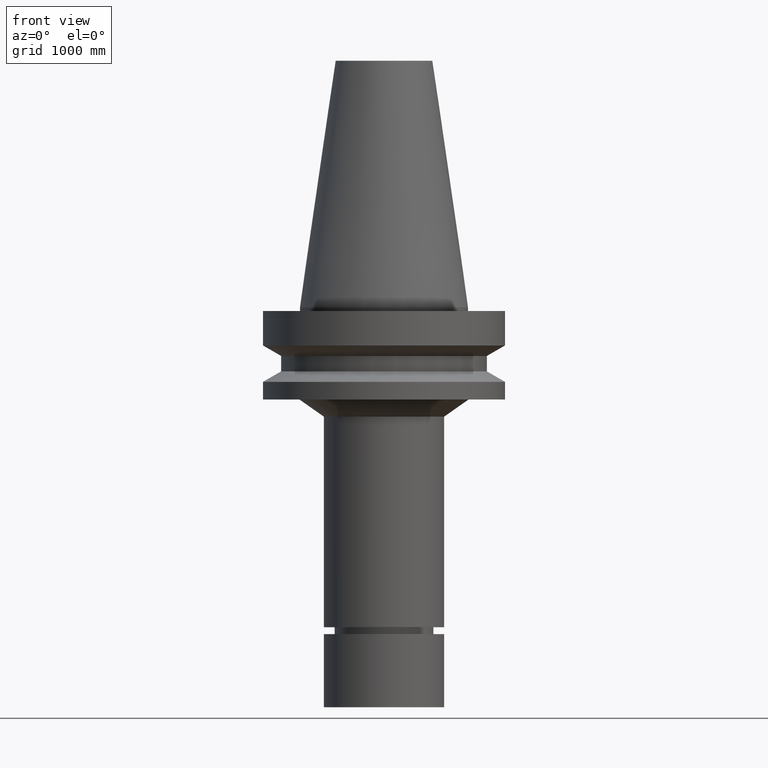
[diagram: clean part render]
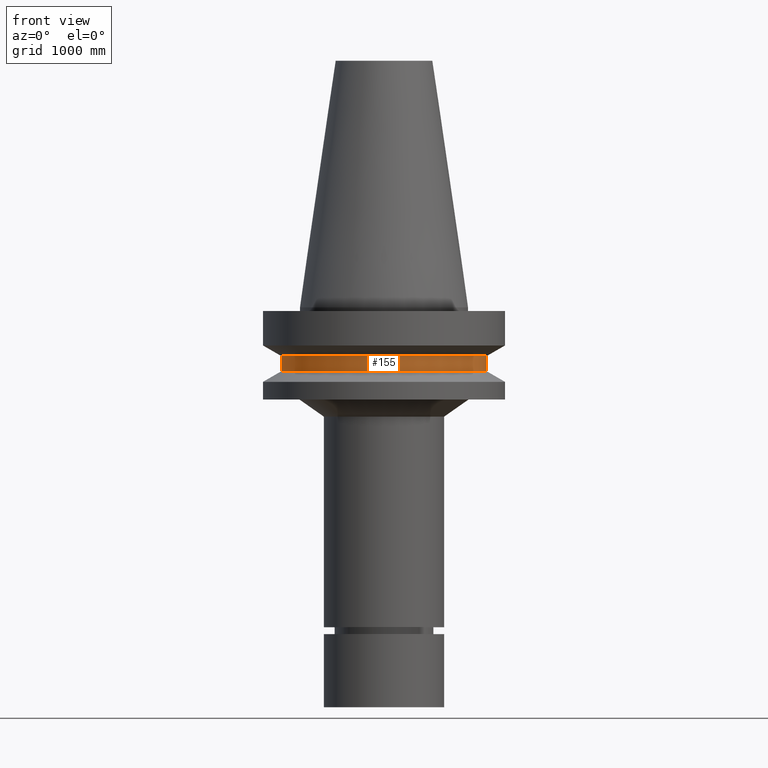
[diagram: same view with one face highlighted and labeled with its STEP entity id]
A machine part, front view. The second image highlights one B-rep face of the part: STEP entity #155.
In plain terms, the highlighted cylindrical surface (bore or boss wall) has radius 1079.5 mm, axis along (-0, -0, 1).
Its self-contained STEP definition (entity closure, byte-faithful):
#88=EDGE_CURVE('Unnamed[1]',#222,#222,#223,.T.);
#122=EDGE_CURVE('Unnamed[1]',#275,#275,#276,.T.);
#155=ADVANCED_FACE('Unnamed[1]',(#324,#325),#326,.T.);
#222=VERTEX_POINT('',#403);
#223=CIRCLE('',#404,42.5);
#275=VERTEX_POINT('',#469);
#276=CIRCLE('',#470,42.5);
#324=FACE_BOUND('',#530,.T.);
#325=FACE_BOUND('',#531,.T.);
#326=CYLINDRICAL_SURFACE('',#532,42.5);
#403=CARTESIAN_POINT('',(1.2264915470779E-015,42.5,-20.03012702));
#404=AXIS2_PLACEMENT_3D('',#604,#605,#606);
#469=CARTESIAN_POINT('',(1.61468902694397E-015,42.5,-26.3698729800001));
#470=AXIS2_PLACEMENT_3D('',#665,#666,#667);
#530=EDGE_LOOP('',(#717));
#531=EDGE_LOOP('',(#718));
#532=AXIS2_PLACEMENT_3D('',#719,#720,#721);
#604=CARTESIAN_POINT('',(1.2264915470779E-015,1.63548757589177E-014,-20.03012702));
#605=DIRECTION('',(-6.12323399573677E-017,-2.72265846766253E-017,1.0));
#606=DIRECTION('',(-6.4943002195635E-033,1.0,2.72265846766253E-017));
#665=CARTESIAN_POINT('',(1.61468902694397E-015,1.6527485389126E-014,-26.3698729800001));
#666=DIRECTION('',(-6.12323399573677E-017,-2.72265846766253E-017,1.0));
#667=DIRECTION('',(-6.4943002195635E-033,1.0,2.72265846766253E-017));
#717=ORIENTED_EDGE('',*,*,#88,.F.);
#718=ORIENTED_EDGE('',*,*,#122,.T.);
#719=CARTESIAN_POINT('',(1.42059028701093E-015,1.64411805740219E-014,-23.2));
#720=DIRECTION('',(-6.12323399573677E-017,-2.72265846766253E-017,1.0));
#721=DIRECTION('',(-6.4943002195635E-033,1.0,2.72265846766253E-017));